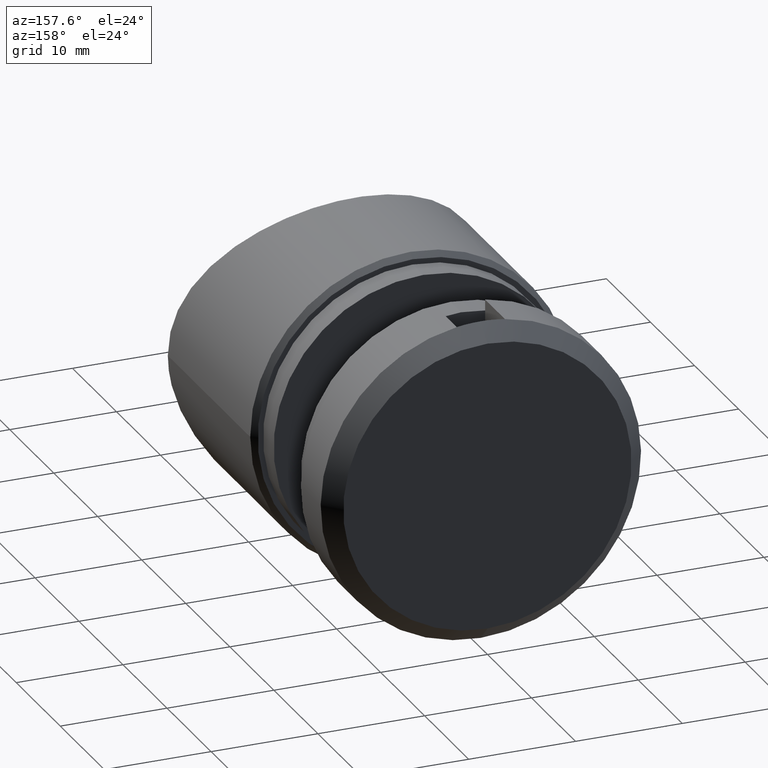
[diagram: clean part render]
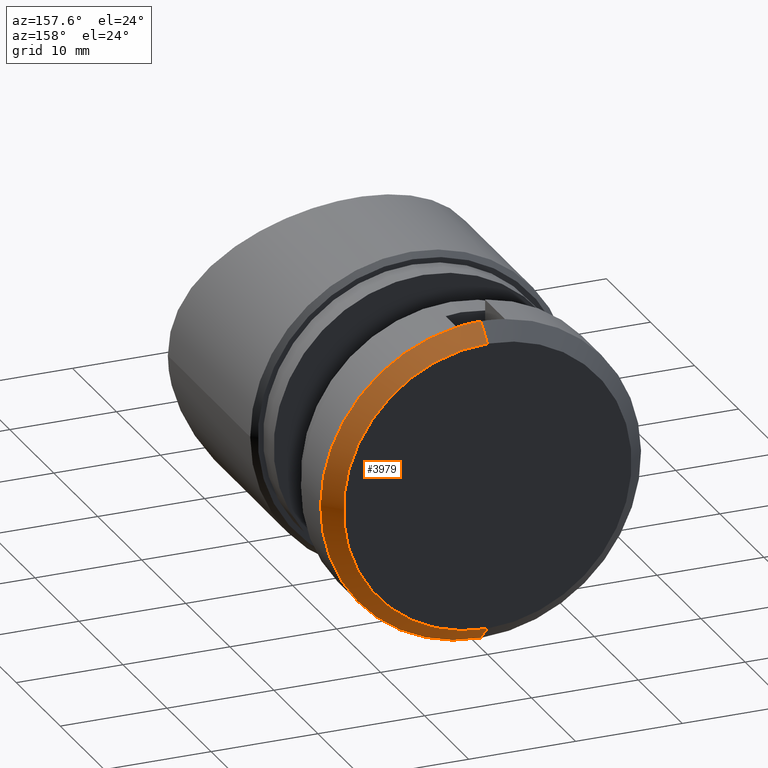
[diagram: same view with one face highlighted and labeled with its STEP entity id]
A machine part, auxiliary view. The second image highlights one B-rep face of the part: STEP entity #3979.
In plain terms, the highlighted conical surface has half-angle 45 deg.
Its self-contained STEP definition (entity closure, byte-faithful):
#120 = AXIS2_PLACEMENT_3D ( 'NONE', #5622, #8862, #9898 ) ;
#192 = DIRECTION ( 'NONE',  ( -0.000000000000000000, -1.000000000000000000, -0.000000000000000000 ) ) ;
#582 = ORIENTED_EDGE ( 'NONE', *, *, #2396, .F. ) ;
#638 = ORIENTED_EDGE ( 'NONE', *, *, #10286, .T. ) ;
#730 = VERTEX_POINT ( 'NONE', #1152 ) ;
#924 = AXIS2_PLACEMENT_3D ( 'NONE', #6590, #9817, #6684 ) ;
#1152 = CARTESIAN_POINT ( 'NONE',  ( 1.836970198721029983E-15, 9.500000000000001776, 15.00000000000000178 ) ) ;
#1406 = LINE ( 'NONE', #7866, #5936 ) ;
#1523 = DIRECTION ( 'NONE',  ( 0.000000000000000000, -0.7071067811865471286, -0.7071067811865479058 ) ) ;
#2396 = EDGE_CURVE ( 'NONE', #11799, #730, #3904, .T. ) ;
#2803 = DIRECTION ( 'NONE',  ( 0.000000000000000000, 0.000000000000000000, -1.000000000000000000 ) ) ;
#2993 = CIRCLE ( 'NONE', #7919, 13.50000000000000000 ) ;
#3525 = DIRECTION ( 'NONE',  ( 0.000000000000000000, 0.000000000000000000, -1.000000000000000000 ) ) ;
#3656 = VERTEX_POINT ( 'NONE', #12433 ) ;
#3904 = CIRCLE ( 'NONE', #924, 15.00000000000000178 ) ;
#3979 = ADVANCED_FACE ( 'NONE', ( #7734 ), #12416, .T. ) ;
#5303 = ORIENTED_EDGE ( 'NONE', *, *, #10345, .T. ) ;
#5622 = CARTESIAN_POINT ( 'NONE',  ( 0.000000000000000000, 9.500000000000001776, 0.000000000000000000 ) ) ;
#5936 = VECTOR ( 'NONE', #1523, 1000.000000000000000 ) ;
#6219 = ORIENTED_EDGE ( 'NONE', *, *, #11620, .F. ) ;
#6301 = VERTEX_POINT ( 'NONE', #7135 ) ;
#6590 = CARTESIAN_POINT ( 'NONE',  ( 0.000000000000000000, 9.500000000000001776, 0.000000000000000000 ) ) ;
#6684 = DIRECTION ( 'NONE',  ( 0.000000000000000000, 0.000000000000000000, -1.000000000000000000 ) ) ;
#7097 = DIRECTION ( 'NONE',  ( -0.000000000000000000, -1.000000000000000000, -0.000000000000000000 ) ) ;
#7135 = CARTESIAN_POINT ( 'NONE',  ( 0.000000000000000000, 11.00000000000000000, -13.50000000000000000 ) ) ;
#7326 = CARTESIAN_POINT ( 'NONE',  ( 2.250000000000005773, 9.500000000000001776, 14.83028994996389294 ) ) ;
#7734 = FACE_OUTER_BOUND ( 'NONE', #9147, .T. ) ;
#7866 = CARTESIAN_POINT ( 'NONE',  ( 0.000000000000000000, 9.500000000000001776, -15.00000000000000178 ) ) ;
#7919 = AXIS2_PLACEMENT_3D ( 'NONE', #10938, #192, #3525 ) ;
#8165 = CARTESIAN_POINT ( 'NONE',  ( 0.000000000000000000, 9.500000000000001776, 0.000000000000000000 ) ) ;
#8642 = VECTOR ( 'NONE', #9580, 1000.000000000000000 ) ;
#8779 = ORIENTED_EDGE ( 'NONE', *, *, #8821, .F. ) ;
#8821 = EDGE_CURVE ( 'NONE', #3656, #11799, #10597, .T. ) ;
#8862 = DIRECTION ( 'NONE',  ( -0.000000000000000000, -1.000000000000000000, -0.000000000000000000 ) ) ;
#9147 = EDGE_LOOP ( 'NONE', ( #5303, #638, #582, #8779, #6219 ) ) ;
#9580 = DIRECTION ( 'NONE',  ( 8.659560562354937789E-17, -0.7071067811865471286, 0.7071067811865479058 ) ) ;
#9817 = DIRECTION ( 'NONE',  ( -0.000000000000000000, -1.000000000000000000, -0.000000000000000000 ) ) ;
#9898 = DIRECTION ( 'NONE',  ( 0.000000000000000000, 0.000000000000000000, -1.000000000000000000 ) ) ;
#10168 = VERTEX_POINT ( 'NONE', #11224 ) ;
#10286 = EDGE_CURVE ( 'NONE', #10168, #730, #11662, .T. ) ;
#10345 = EDGE_CURVE ( 'NONE', #6301, #10168, #2993, .T. ) ;
#10597 = CIRCLE ( 'NONE', #11966, 15.00000000000000178 ) ;
#10938 = CARTESIAN_POINT ( 'NONE',  ( 0.000000000000000000, 11.00000000000000000, 0.000000000000000000 ) ) ;
#11224 = CARTESIAN_POINT ( 'NONE',  ( 1.745121688784978228E-15, 11.00000000000000000, 13.50000000000000000 ) ) ;
#11620 = EDGE_CURVE ( 'NONE', #6301, #3656, #1406, .T. ) ;
#11662 = LINE ( 'NONE', #11684, #8642 ) ;
#11684 = CARTESIAN_POINT ( 'NONE',  ( 1.836970198721029983E-15, 9.500000000000001776, 15.00000000000000178 ) ) ;
#11799 = VERTEX_POINT ( 'NONE', #7326 ) ;
#11966 = AXIS2_PLACEMENT_3D ( 'NONE', #8165, #7097, #2803 ) ;
#12416 = CONICAL_SURFACE ( 'NONE', #120, 15.00000000000000178, 0.7853981633974488341 ) ;
#12433 = CARTESIAN_POINT ( 'NONE',  ( 0.000000000000000000, 9.500000000000001776, -15.00000000000000355 ) ) ;